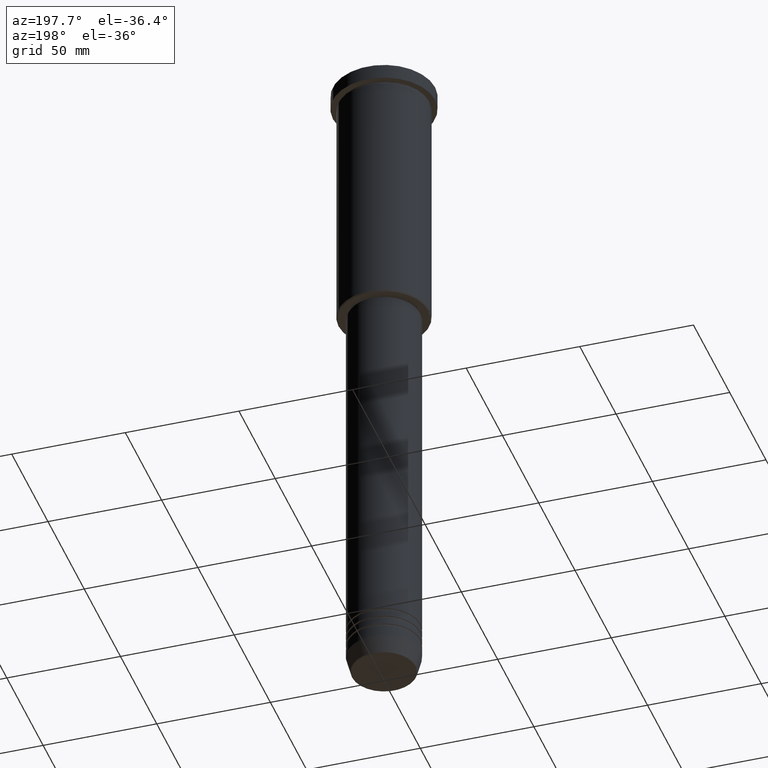
[diagram: clean part render]
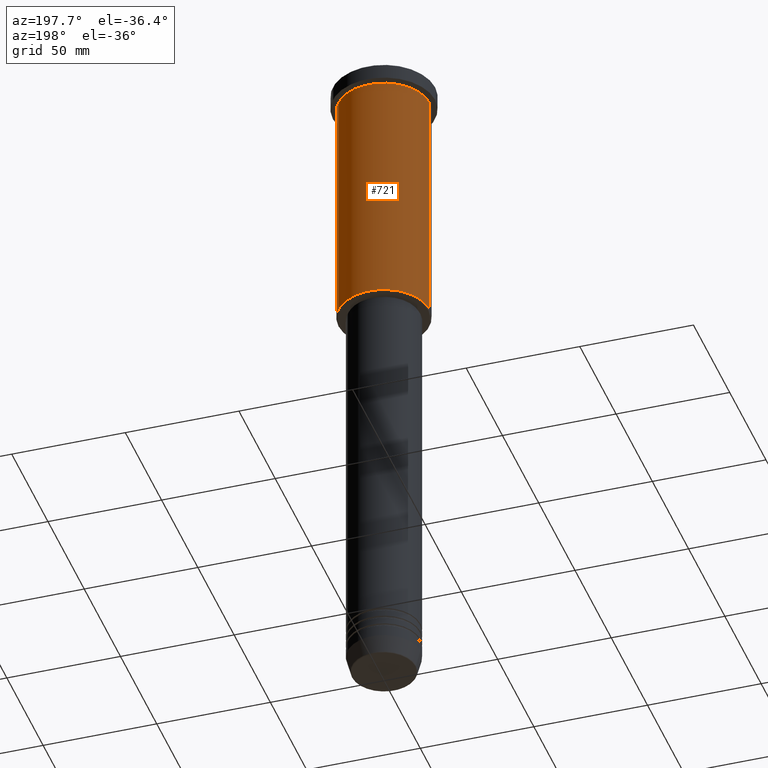
[diagram: same view with one face highlighted and labeled with its STEP entity id]
A machine part, auxiliary view. The second image highlights one B-rep face of the part: STEP entity #721.
In plain terms, the highlighted cylindrical surface (partial cylindrical patch) has radius 20 mm, axis along (-0, -0, 1).
Its self-contained STEP definition (entity closure, byte-faithful):
#35 = CARTESIAN_POINT ( 'NONE',  ( 0.000000000000000000, 0.000000000000000000, -7.999999999999994671 ) ) ;
#101 = DIRECTION ( 'NONE',  ( -0.000000000000000000, -0.000000000000000000, 1.000000000000000000 ) ) ;
#136 = ORIENTED_EDGE ( 'NONE', *, *, #385, .F. ) ;
#139 = CARTESIAN_POINT ( 'NONE',  ( 0.000000000000000000, 0.000000000000000000, -115.5000000000000142 ) ) ;
#152 = ORIENTED_EDGE ( 'NONE', *, *, #893, .T. ) ;
#192 = CARTESIAN_POINT ( 'NONE',  ( -20.00000000000000355, 2.449293598294706907E-15, -115.5000000000000142 ) ) ;
#204 = CARTESIAN_POINT ( 'NONE',  ( 20.00000000000000000, 0.000000000000000000, -7.999999999999994671 ) ) ;
#209 = CARTESIAN_POINT ( 'NONE',  ( 0.000000000000000000, 0.000000000000000000, 0.000000000000000000 ) ) ;
#219 = CYLINDRICAL_SURFACE ( 'NONE', #699, 20.00000000000000355 ) ;
#220 = DIRECTION ( 'NONE',  ( 1.000000000000000000, 0.000000000000000000, 0.000000000000000000 ) ) ;
#288 = CIRCLE ( 'NONE', #321, 20.00000000000000000 ) ;
#300 = FACE_OUTER_BOUND ( 'NONE', #538, .T. ) ;
#321 = AXIS2_PLACEMENT_3D ( 'NONE', #35, #401, #220 ) ;
#384 = CARTESIAN_POINT ( 'NONE',  ( 20.00000000000000355, 0.000000000000000000, -115.5000000000000142 ) ) ;
#385 = EDGE_CURVE ( 'NONE', #720, #391, #931, .T. ) ;
#390 = VECTOR ( 'NONE', #101, 1000.000000000000000 ) ;
#391 = VERTEX_POINT ( 'NONE', #204 ) ;
#394 = CIRCLE ( 'NONE', #839, 20.00000000000000355 ) ;
#401 = DIRECTION ( 'NONE',  ( -0.000000000000000000, -0.000000000000000000, 1.000000000000000000 ) ) ;
#455 = CARTESIAN_POINT ( 'NONE',  ( 20.00000000000000355, 0.000000000000000000, 0.000000000000000000 ) ) ;
#474 = DIRECTION ( 'NONE',  ( 1.000000000000000000, 0.000000000000000000, 0.000000000000000000 ) ) ;
#505 = DIRECTION ( 'NONE',  ( -1.000000000000000000, 0.000000000000000000, 0.000000000000000000 ) ) ;
#521 = ORIENTED_EDGE ( 'NONE', *, *, #1036, .T. ) ;
#536 = DIRECTION ( 'NONE',  ( -0.000000000000000000, -0.000000000000000000, 1.000000000000000000 ) ) ;
#538 = EDGE_LOOP ( 'NONE', ( #152, #521, #1096, #136 ) ) ;
#576 = DIRECTION ( 'NONE',  ( -0.000000000000000000, -0.000000000000000000, 1.000000000000000000 ) ) ;
#699 = AXIS2_PLACEMENT_3D ( 'NONE', #209, #734, #474 ) ;
#713 = LINE ( 'NONE', #1158, #940 ) ;
#720 = VERTEX_POINT ( 'NONE', #384 ) ;
#721 = ADVANCED_FACE ( 'NONE', ( #300 ), #219, .T. ) ;
#734 = DIRECTION ( 'NONE',  ( -0.000000000000000000, -0.000000000000000000, 1.000000000000000000 ) ) ;
#737 = VERTEX_POINT ( 'NONE', #192 ) ;
#839 = AXIS2_PLACEMENT_3D ( 'NONE', #139, #576, #505 ) ;
#878 = EDGE_CURVE ( 'NONE', #391, #958, #288, .T. ) ;
#893 = EDGE_CURVE ( 'NONE', #720, #737, #394, .T. ) ;
#931 = LINE ( 'NONE', #455, #390 ) ;
#940 = VECTOR ( 'NONE', #536, 1000.000000000000000 ) ;
#958 = VERTEX_POINT ( 'NONE', #1073 ) ;
#1036 = EDGE_CURVE ( 'NONE', #737, #958, #713, .T. ) ;
#1073 = CARTESIAN_POINT ( 'NONE',  ( -20.00000000000000000, 2.449293598294706513E-15, -7.999999999999994671 ) ) ;
#1096 = ORIENTED_EDGE ( 'NONE', *, *, #878, .F. ) ;
#1158 = CARTESIAN_POINT ( 'NONE',  ( -20.00000000000000355, 2.449293598294706907E-15, 0.000000000000000000 ) ) ;